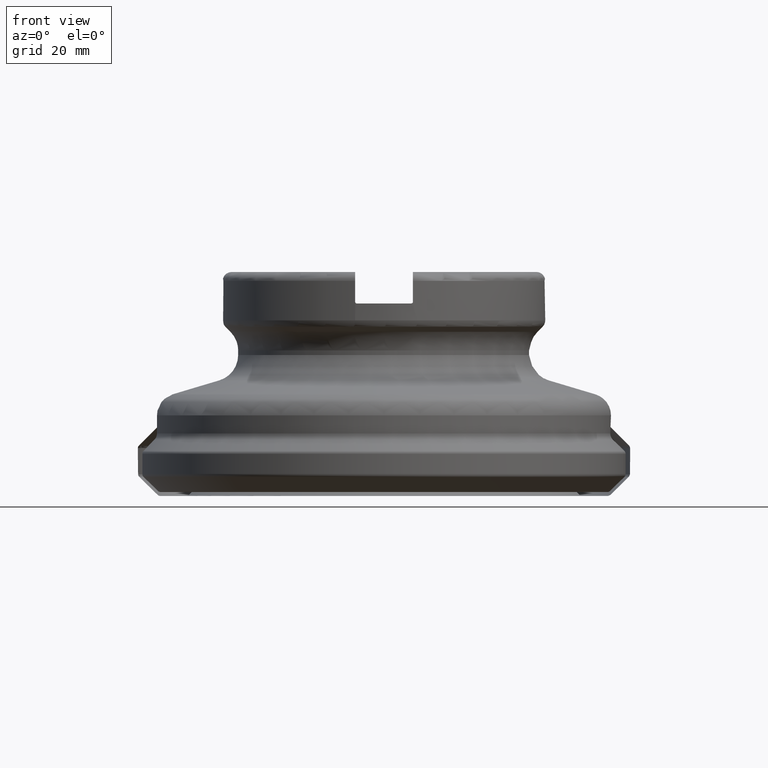
[diagram: clean part render]
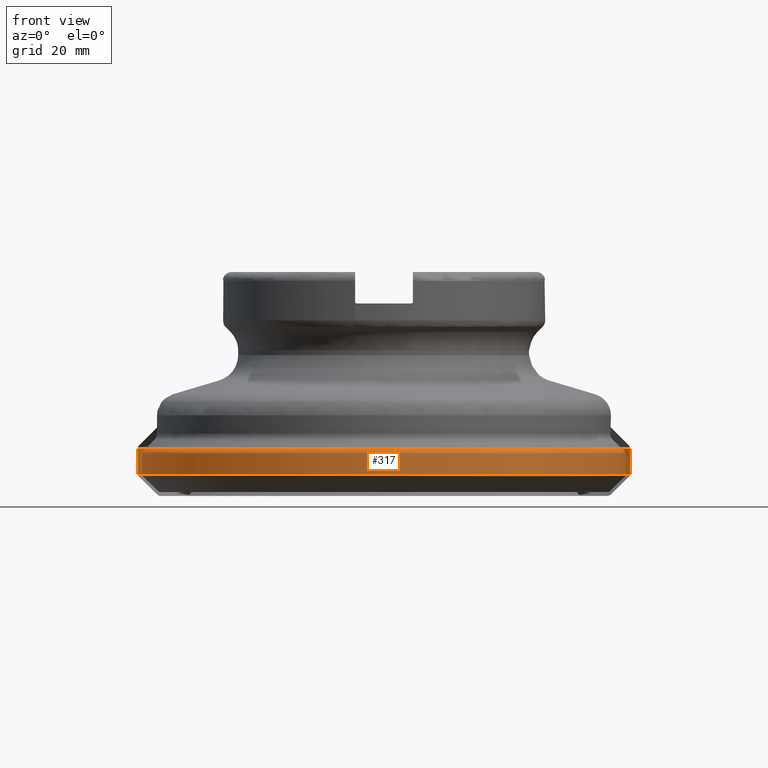
[diagram: same view with one face highlighted and labeled with its STEP entity id]
A machine part, front view. The second image highlights one B-rep face of the part: STEP entity #317.
In plain terms, the highlighted face is a SurfaceOfRevolution surface.
Its self-contained STEP definition (entity closure, byte-faithful):
#129=SURFACE_OF_REVOLUTION('',#227,#151);
#151=AXIS1_PLACEMENT('',#2038,#1360);
#227=LINE('',#2037,#255);
#255=VECTOR('',#1359,5.97815706144227);
#317=ADVANCED_FACE('',(#422,#423),#129,.F.);
#422=FACE_BOUND('',#538,.T.);
#423=FACE_BOUND('',#539,.T.);
#538=EDGE_LOOP('',(#732));
#539=EDGE_LOOP('',(#733));
#732=ORIENTED_EDGE('',*,*,#919,.T.);
#733=ORIENTED_EDGE('',*,*,#920,.F.);
#822=VERTEX_POINT('',#2029);
#823=VERTEX_POINT('',#2036);
#919=EDGE_CURVE('',#822,#822,#976,.T.);
#920=EDGE_CURVE('',#823,#823,#977,.T.);
#976=CIRCLE('',#1124,55.8471534872068);
#977=CIRCLE('',#1125,55.7919752802261);
#1124=AXIS2_PLACEMENT_3D('',#2028,#1354,#1355);
#1125=AXIS2_PLACEMENT_3D('',#2035,#1357,#1358);
#1354=DIRECTION('',(1.17145536458252E-15,0.,1.));
#1355=DIRECTION('',(1.,0.,-1.1803554518176E-15));
#1357=DIRECTION('',(1.17145536458252E-15,0.,1.));
#1358=DIRECTION('',(1.,0.,-1.16597646923941E-15));
#1359=DIRECTION('',(0.121869343405149,-0.00166028784697431,0.992544763011857));
#1360=DIRECTION('',(1.17145536458252E-15,0.,1.));
#2028=CARTESIAN_POINT('',(1.27070043136104E-14,0.,10.8471946074863));
#2029=CARTESIAN_POINT('',(55.8471534872068,0.,10.8471946074862));
#2035=CARTESIAN_POINT('',(5.75607009660054E-15,0.,4.9136059901453));
#2036=CARTESIAN_POINT('',(55.7919752802261,0.,4.91360599014524));
#2037=CARTESIAN_POINT('',(3.10433431159704,-55.7055438377096,4.9136061236894));
#2038=CARTESIAN_POINT('',(0.,0.,0.));